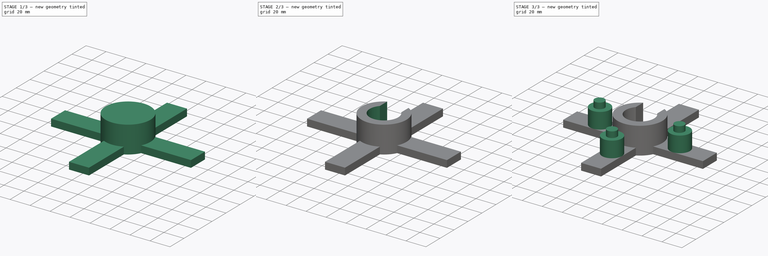
[diagram: build sequence overview — one tinted view per stage of 3, left to right]
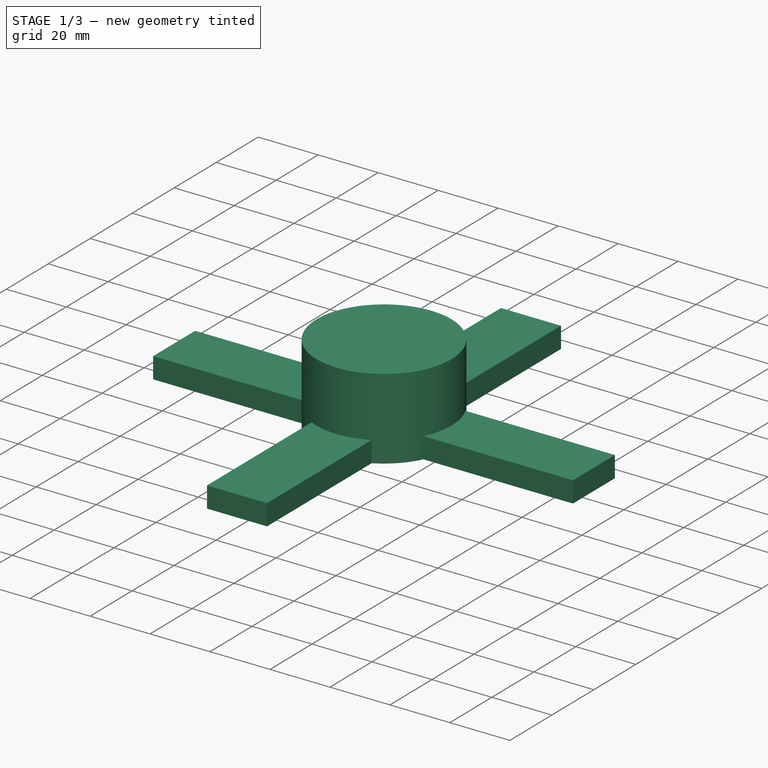
[diagram: stage 1 of 3 — iso view after this stage's code; geometry added in this stage tinted green]
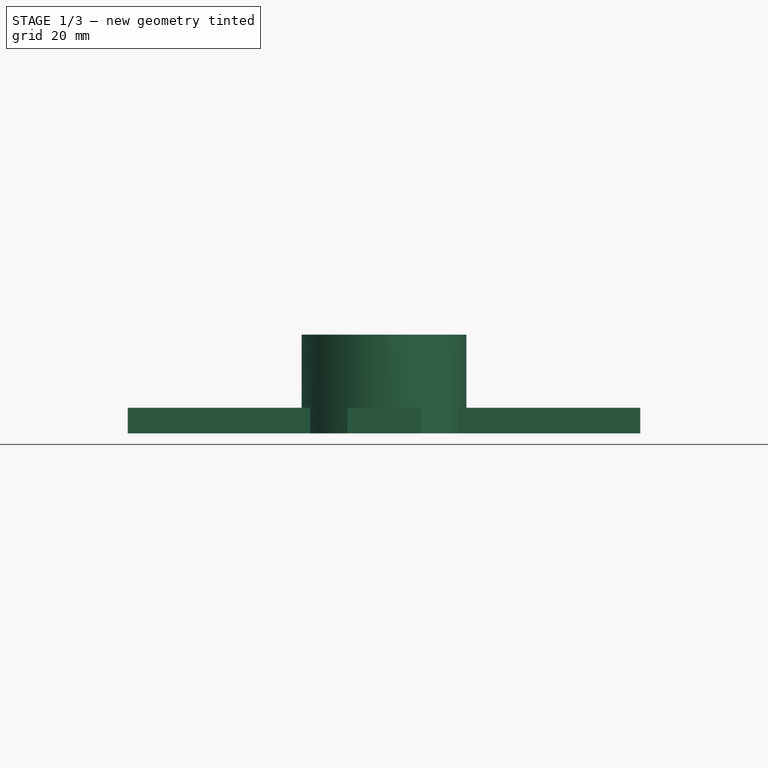
[diagram: stage 1 of 3 — front view after this stage's code; geometry added in this stage tinted green]
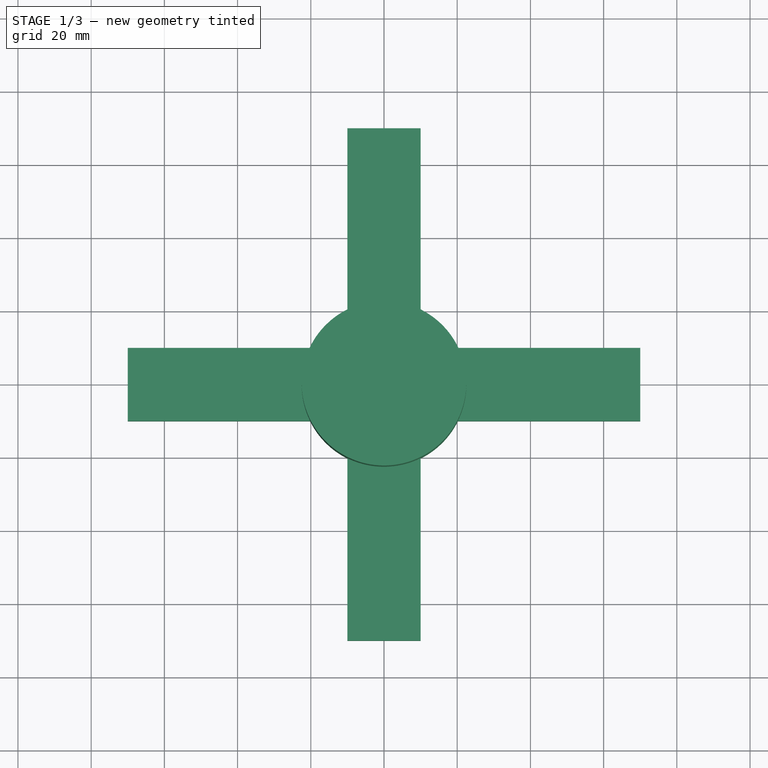
[diagram: stage 1 of 3 — top view after this stage's code; geometry added in this stage tinted green]
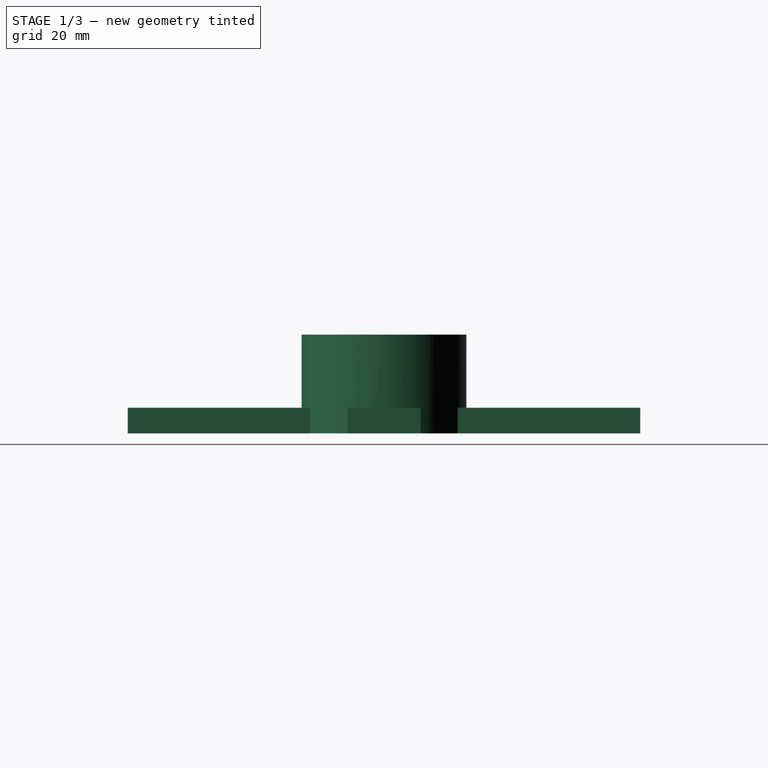
[diagram: stage 1 of 3 — right view after this stage's code; geometry added in this stage tinted green]
FCSTD DOCUMENT  (FreeCAD 1.0R39319 (Git))
Label: root0
License: All rights reserved
LicenseURL: https://en.wikipedia.org/wiki/All_rights_reserved
objects: Sketcher::SketchObject×5, PartDesign::Pad×4, PartDesign::Pocket×1, PartDesign::Body×1
note: 26 computed .brp shape members not serialized (recipe doc carries the construction recipe); baked Part::Feature solids carry a one-line shape summary decoded from their .brp

FEATURE [Sketcher::SketchObject] Sketch
  ArcFitTolerance = 1e-06
  AttachmentSupport = -> [XY_Plane]
  FullyConstrained = false
  MakeInternals = false
  MapMode = 5
  sketch-geometry (18):
    g0: ArcOfCircle CenterX=0 CenterY=0 CenterZ=0 NormalX=0 NormalY=0 NormalZ=1 AngleXU=0 Radius=22.5 StartAngle=2.03135 EndAngle=2.68104
    g1: LineSegment StartX=-70 StartY=-10 StartZ=0 EndX=-20.1556 EndY=-10 EndZ=0
    g2: LineSegment StartX=70 StartY=-10 StartZ=0 EndX=70 EndY=10 EndZ=0
    g3: LineSegment StartX=70 StartY=10 StartZ=0 EndX=20.1556 EndY=10 EndZ=0
    g4: LineSegment StartX=-70 StartY=10 StartZ=0 EndX=-70 EndY=-10 EndZ=0
    g5: GeomPoint [constr] X=0 Y=0 Z=0
    g6: LineSegment StartX=-10 StartY=-70 StartZ=0 EndX=10 EndY=-70 EndZ=0
    g7: LineSegment StartX=10 StartY=-70 StartZ=0 EndX=10 EndY=-20.1556 EndZ=0
    g8: LineSegment StartX=10 StartY=70 StartZ=0 EndX=-10 EndY=70 EndZ=0
    g9: LineSegment StartX=-10 StartY=70 StartZ=0 EndX=-10 EndY=20.1556 EndZ=0
    g10: GeomPoint [constr] X=0 Y=0 Z=0
    g11: ArcOfCircle CenterX=0 CenterY=0 CenterZ=0 NormalX=0 NormalY=0 NormalZ=1 AngleXU=0 Radius=22.5 StartAngle=3.60215 EndAngle=4.25183
    g12: ArcOfCircle CenterX=0 CenterY=0 CenterZ=0 NormalX=0 NormalY=0 NormalZ=1 AngleXU=0 Radius=22.5 StartAngle=5.17294 EndAngle=5.82263
    g13: LineSegment StartX=20.1556 StartY=-10 StartZ=0 EndX=70 EndY=-10 EndZ=0
    g14: LineSegment StartX=-10 StartY=-20.1556 StartZ=0 EndX=-10 EndY=-70 EndZ=0
    g15: LineSegment StartX=-20.1556 StartY=10 StartZ=0 EndX=-70 EndY=10 EndZ=0
    g16: LineSegment StartX=10 StartY=20.1556 StartZ=0 EndX=10 EndY=70 EndZ=0
    g17: ArcOfCircle CenterX=0 CenterY=0 CenterZ=0 NormalX=0 NormalY=0 NormalZ=1 AngleXU=0 Radius=22.5 StartAngle=0.460554 EndAngle=1.11024
  constraints (42):
    c: Coincident(g0,g-1)
    c: Diameter(g0) = 45
    c: Coincident(g13,g2)
    c: Coincident(g2,g3)
    c: Coincident(g15,g4)
    c: Coincident(g4,g1)
    c: Horizontal(g1)
    c: Horizontal(g3)
    c: Vertical(g2)
    c: Vertical(g4)
    c: Symmetric(g3,g1,g5)
    c: Distance(g2,g4) = 140
    c: Distance(g1,g15) = 20
    c: Coincident(g5,g0)
    c: Coincident(g6,g7)
    c: Coincident(g16,g8)
    c: Coincident(g8,g9)
    c: Coincident(g14,g6)
    c: Horizontal(g6)
    c: Horizontal(g8)
    c: Vertical(g7)
    c: Vertical(g9)
    c: Symmetric(g8,g6,g10)
    c: Distance(g7,g14) = 20
    c: Distance(g6,g8) = 140
    c: Coincident(g10,g0)
    c: Equal(g0,g11)
    c: PointOnObject(g0,g15)
    c: Coincident(g0,g11)
    c: Equal(g11,g12)
    c: PointOnObject(g11,g14)
    c: Coincident(g11,g12)
    c: Coincident(g1,g11)
    c: PointOnObject(g14,g11)
    c: Coincident(g9,g0)
    c: PointOnObject(g15,g0)
    c: Coincident(g16,g17)
    c: Coincident(g7,g12)
    c: Equal(g12,g17)
    c: Coincident(g12,g13)
    c: Coincident(g12,g17)
    c: Coincident(g3,g17)
FEATURE [PartDesign::Pad] Pad
  Direction = (0,0,1)
  Length = 7
  Length2 = 10
  Profile = -> Sketch
  ReferenceAxis = -> Sketch [N_Axis]
  Refine = true
  Suppressed = false
  Type = 0
FEATURE [Sketcher::SketchObject] Sketch001
  ArcFitTolerance = 1e-06
  AttachmentSupport = -> [Pad]
  FullyConstrained = true
  MakeInternals = false
  MapMode = 5
  Placement = pos=(0,0,7) rot=(0,0,1;0rad)
  sketch-geometry (1):
    g0: Circle CenterX=0 CenterY=0 CenterZ=0 NormalX=0 NormalY=0 NormalZ=1 AngleXU=0 Radius=22.5
  constraints (2):
    c: Diameter(g0) = 45
    c: Coincident(g0,g-1)
FEATURE [PartDesign::Pad] Pad001
  BaseFeature = -> Pad
  Direction = (0,0,1)
  Length = 20
  Length2 = 10
  Profile = -> Sketch001
  ReferenceAxis = -> Sketch001 [N_Axis]
  Refine = true
  Suppressed = false
  Type = 0
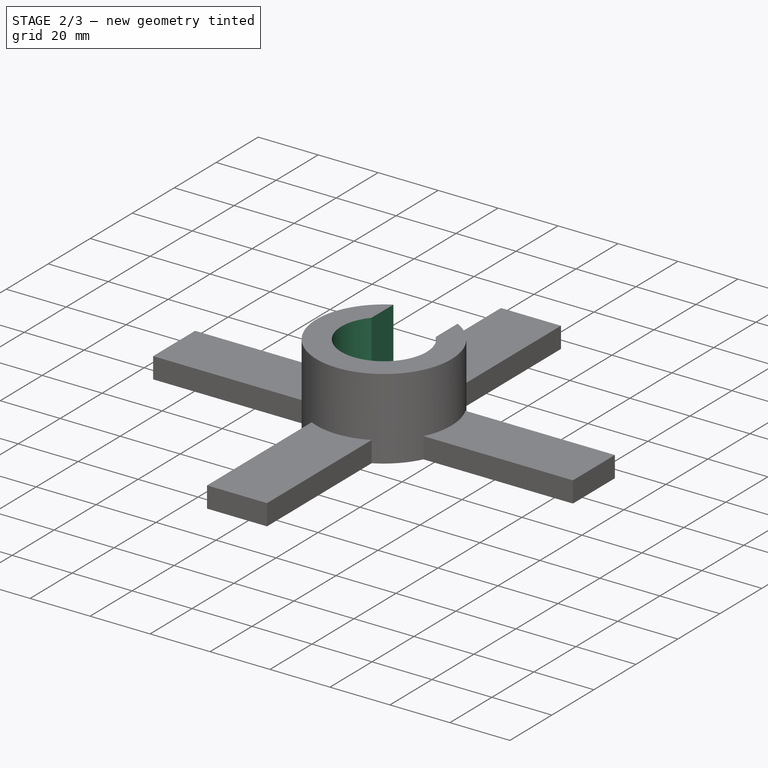
[diagram: stage 2 of 3 — iso view after this stage's code; geometry added in this stage tinted green]
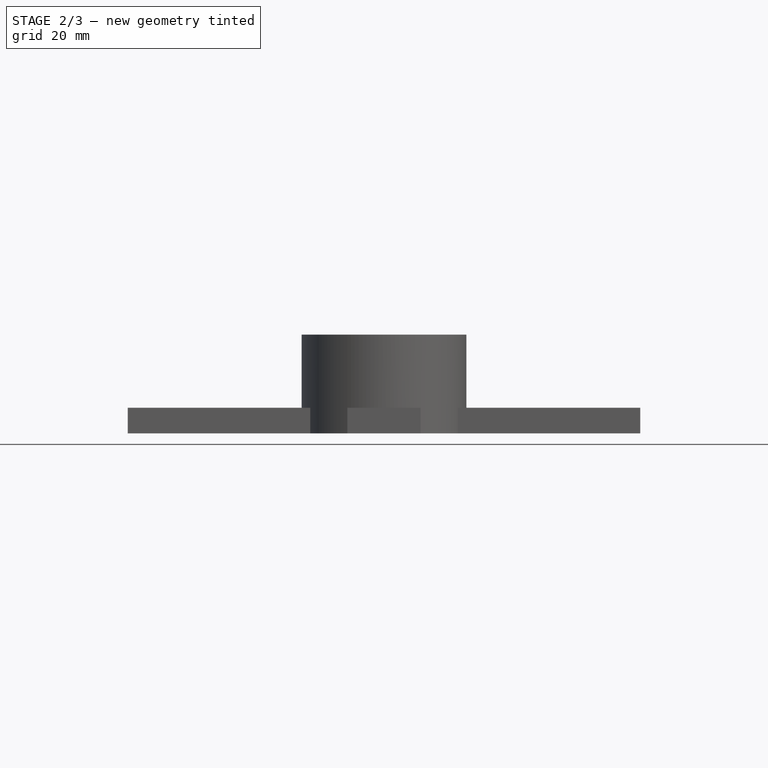
[diagram: stage 2 of 3 — front view after this stage's code; geometry added in this stage tinted green]
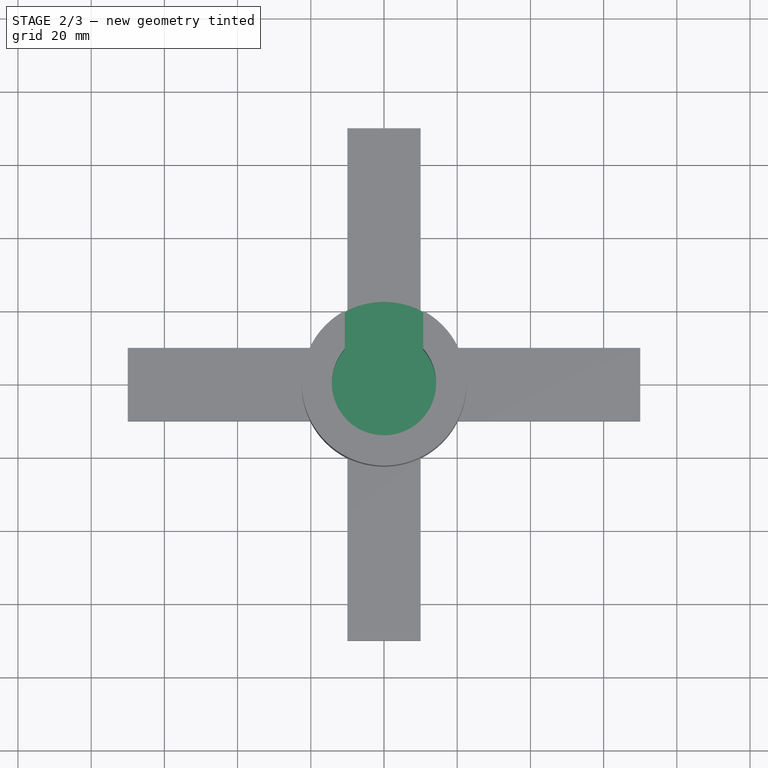
[diagram: stage 2 of 3 — top view after this stage's code; geometry added in this stage tinted green]
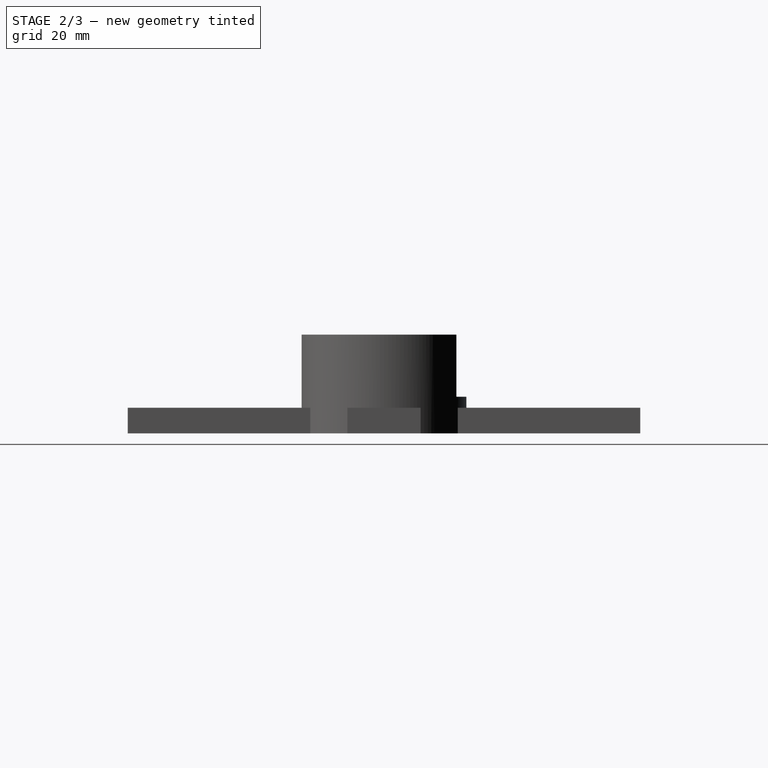
[diagram: stage 2 of 3 — right view after this stage's code; geometry added in this stage tinted green]
FEATURE [Sketcher::SketchObject] Sketch002
  ArcFitTolerance = 1e-06
  AttachmentSupport = -> [Pad001]
  FullyConstrained = false
  MakeInternals = false
  MapMode = 5
  Placement = pos=(0,0,27) rot=(0,0,1;0rad)
  sketch-geometry (5):
    g0: ArcOfCircle CenterX=0 CenterY=0 CenterZ=0 NormalX=0 NormalY=0 NormalZ=1 AngleXU=0 Radius=14.25 StartAngle=2.42303 EndAngle=7.00175
    g1: LineSegment StartX=-10.7267 StartY=32.7495 StartZ=0 EndX=-10.7267 EndY=9.38087 EndZ=0
    g2: LineSegment StartX=10.7267 StartY=9.38087 StartZ=0 EndX=10.7267 EndY=32.7495 EndZ=0
    g3: LineSegment StartX=10.7267 StartY=32.7495 StartZ=0 EndX=-10.7267 EndY=32.7495 EndZ=0
    g4: GeomPoint [constr] X=0 Y=21.0652 Z=0
  constraints (11):
    c: Diameter(g0) = 28.5
    c: Coincident(g0,g-1)
    c: Coincident(g2,g3)
    c: Coincident(g3,g1)
    c: Vertical(g1)
    c: Vertical(g2)
    c: Horizontal(g3)
    c: Symmetric(g2,g1,g4)
    c: PointOnObject(g4,g-2)
    c: Coincident(g0,g2)
    c: Coincident(g0,g1)
FEATURE [PartDesign::Pocket] Pocket
  BaseFeature = -> Pad001
  Direction = (0,0,-1)
  Length = 17
  Length2 = 5
  Profile = -> Sketch002
  ReferenceAxis = -> Sketch002 [N_Axis]
  Refine = true
  Suppressed = false
  Type = 0
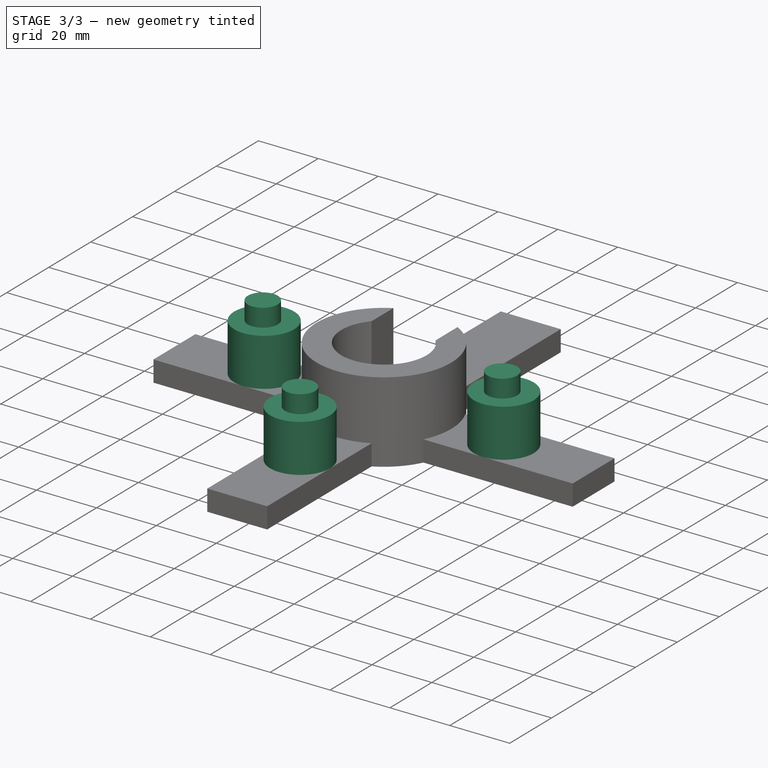
[diagram: stage 3 of 3 — iso view after this stage's code; geometry added in this stage tinted green]
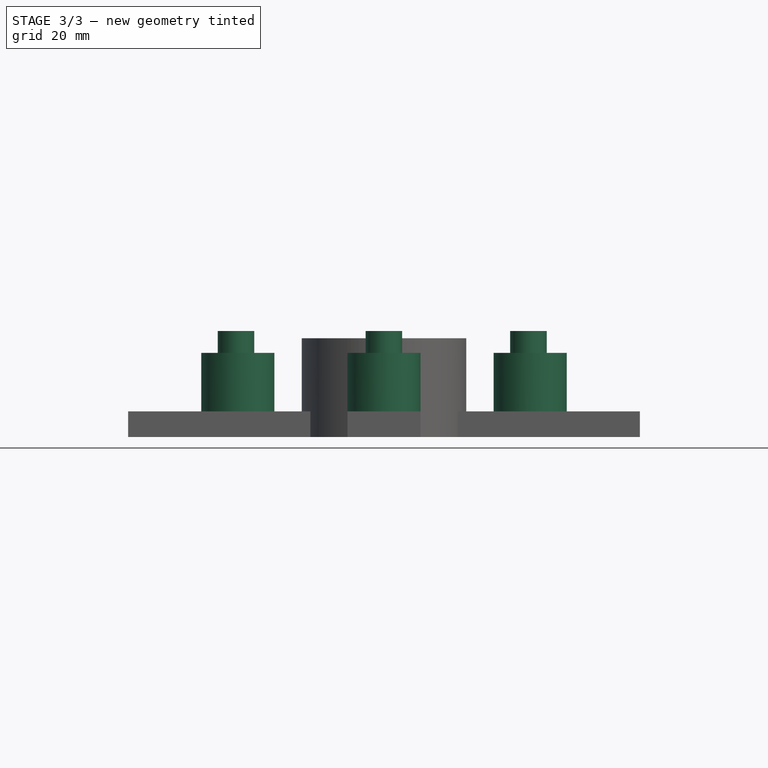
[diagram: stage 3 of 3 — front view after this stage's code; geometry added in this stage tinted green]
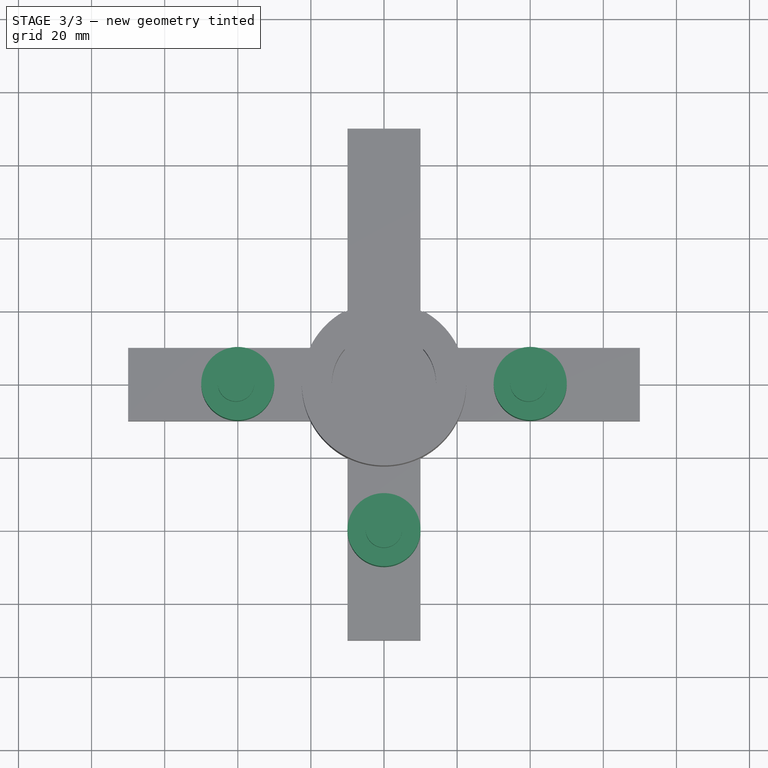
[diagram: stage 3 of 3 — top view after this stage's code; geometry added in this stage tinted green]
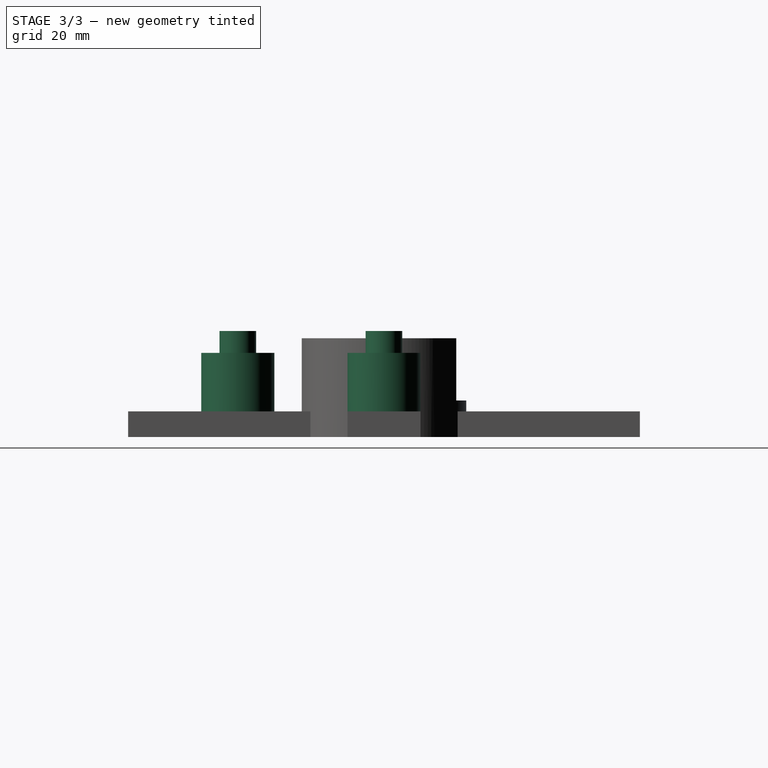
[diagram: stage 3 of 3 — right view after this stage's code; geometry added in this stage tinted green]
FEATURE [Sketcher::SketchObject] Sketch003
  ArcFitTolerance = 1e-06
  AttachmentSupport = -> [Pocket]
  FullyConstrained = false
  MakeInternals = false
  MapMode = 5
  Placement = pos=(0,0,7) rot=(0,0,1;0rad)
  sketch-geometry (4):
    g0: Circle CenterX=-40 CenterY=-0.0160767 CenterZ=0 NormalX=0 NormalY=0 NormalZ=1 AngleXU=0 Radius=10
    g1: Circle CenterX=-0.00221133 CenterY=-40 CenterZ=0 NormalX=0 NormalY=0 NormalZ=1 AngleXU=0 Radius=2.15723e-11
    g2: Circle CenterX=-0.00611 CenterY=-40 CenterZ=0 NormalX=0 NormalY=0 NormalZ=1 AngleXU=0 Radius=10
    g3: Circle CenterX=40 CenterY=-0.001352 CenterZ=0 NormalX=0 NormalY=0 NormalZ=1 AngleXU=0 Radius=10
  constraints (3):
    c: Diameter(g0) = 20
    c: Diameter(g2) = 20
    c: Diameter(g3) = 20
FEATURE [PartDesign::Pad] Pad002
  BaseFeature = -> Pocket
  Direction = (0,0,1)
  Length = 16
  Length2 = 10
  Profile = -> Sketch003
  ReferenceAxis = -> Sketch003 [N_Axis]
  Refine = true
  Suppressed = false
  Type = 0
FEATURE [Sketcher::SketchObject] Sketch004
  ArcFitTolerance = 1e-06
  AttachmentSupport = -> [Pad002]
  FullyConstrained = false
  MakeInternals = false
  MapMode = 5
  Placement = pos=(0,0,23) rot=(0,0,1;0rad)
  sketch-geometry (3):
    g0: Circle CenterX=39.5168 CenterY=-0.020269 CenterZ=0 NormalX=0 NormalY=0 NormalZ=1 AngleXU=0 Radius=5
    g1: Circle CenterX=-0.02946 CenterY=-39.9974 CenterZ=0 NormalX=0 NormalY=0 NormalZ=1 AngleXU=0 Radius=5
    g2: Circle CenterX=-40.4832 CenterY=-0.001534 CenterZ=0 NormalX=0 NormalY=0 NormalZ=1 AngleXU=0 Radius=5
  constraints (3):
    c: Diameter(g0) = 10
    c: Diameter(g1) = 10
    c: Diameter(g2) = 10
FEATURE [PartDesign::Pad] Pad003
  BaseFeature = -> Pad002
  Direction = (0,0,1)
  Length = 6
  Length2 = 10
  Profile = -> Sketch004 [Edge2,Edge1,Edge3]
  ReferenceAxis = -> Sketch004 [N_Axis]
  Refine = true
  Suppressed = false
  Type = 0
FEATURE [PartDesign::Body] Body
  AllowCompound = false
  Group = -> [Sketch,Pad,Sketch001,Pad001,Sketch002,Pocket,Sketch003,Pad002,Sketch004,Pad003]
  Origin = -> Origin
  Tip = -> Pad003
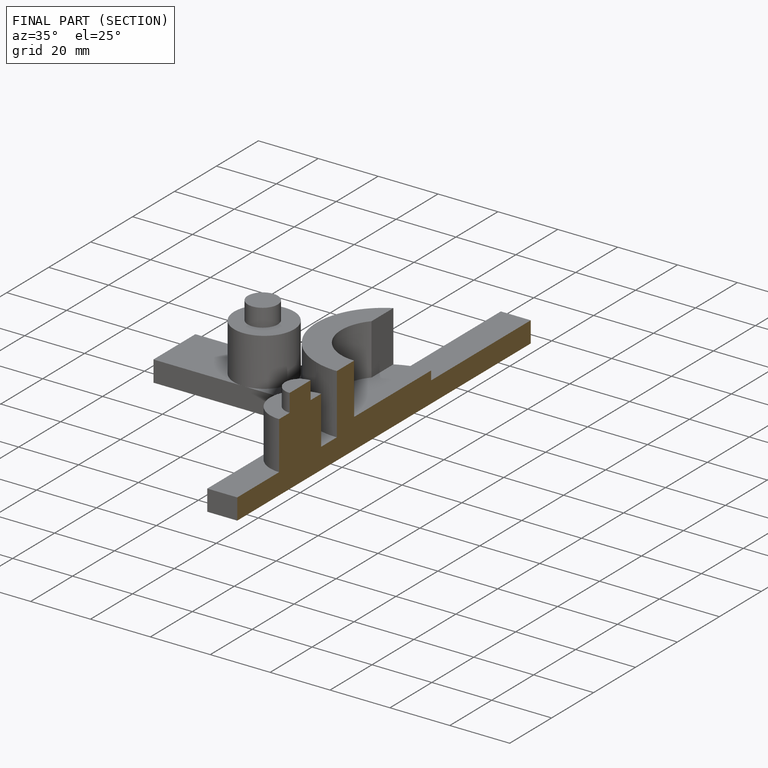
[diagram: finished part — half-section view (interior)]
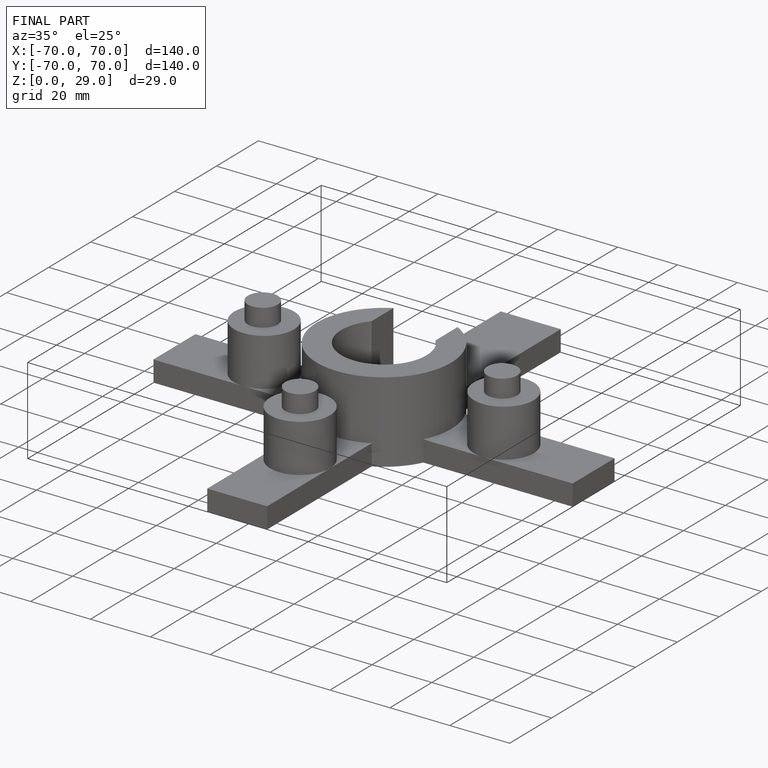
[diagram: finished part — iso view with bounding-box wireframe]
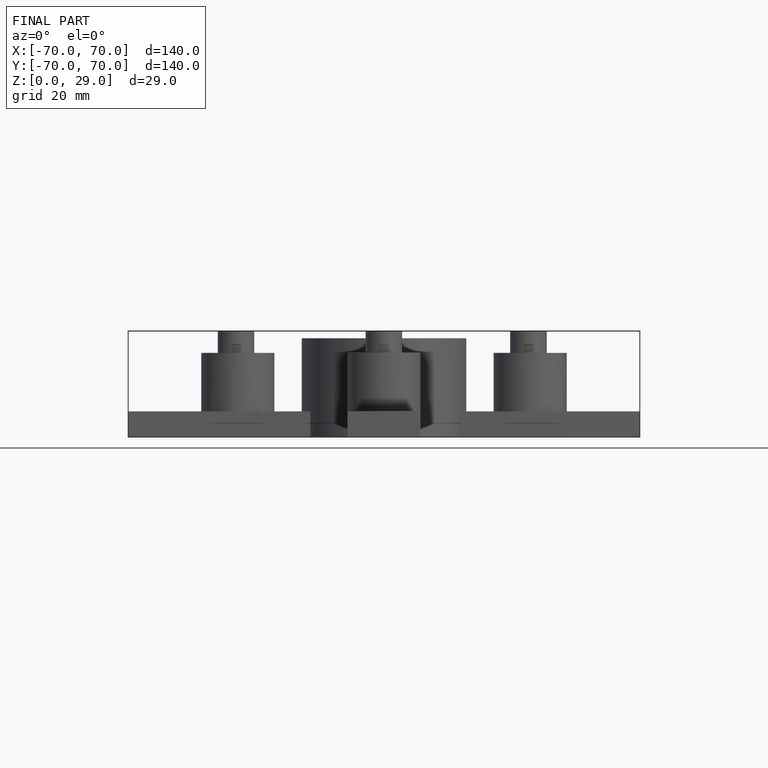
[diagram: finished part — front view with bounding-box wireframe]
